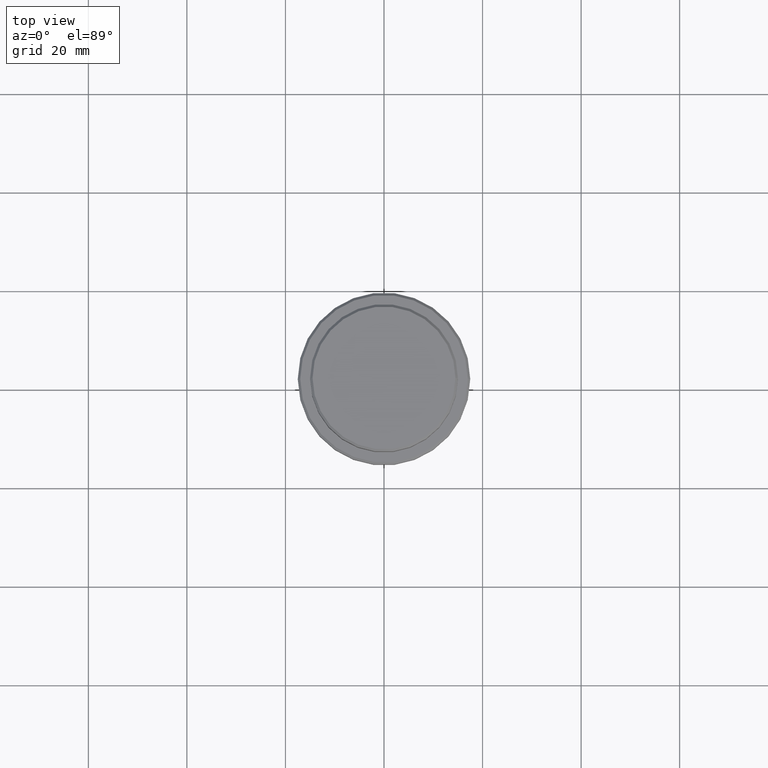
[diagram: clean part render]
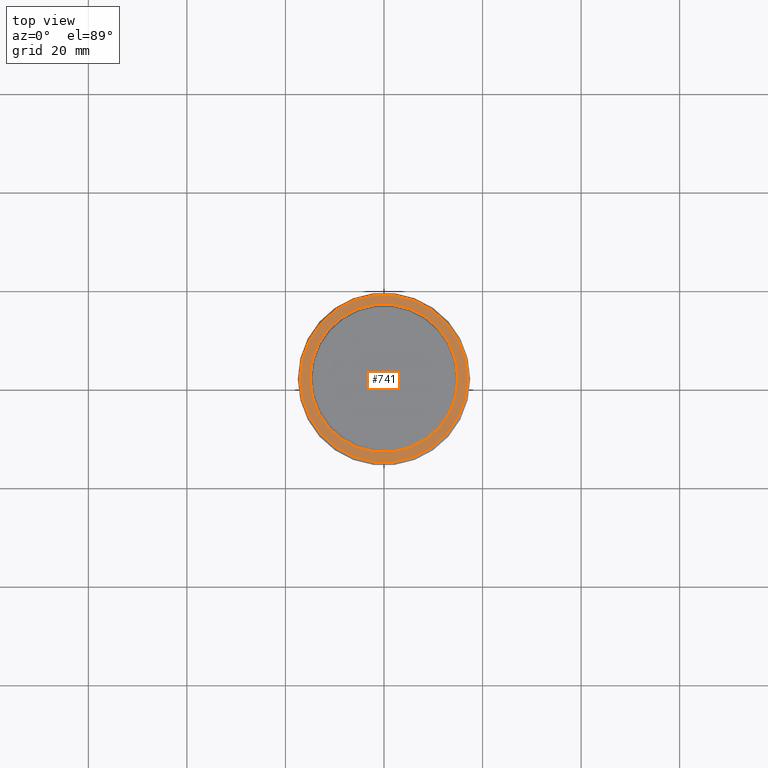
[diagram: same view with one face highlighted and labeled with its STEP entity id]
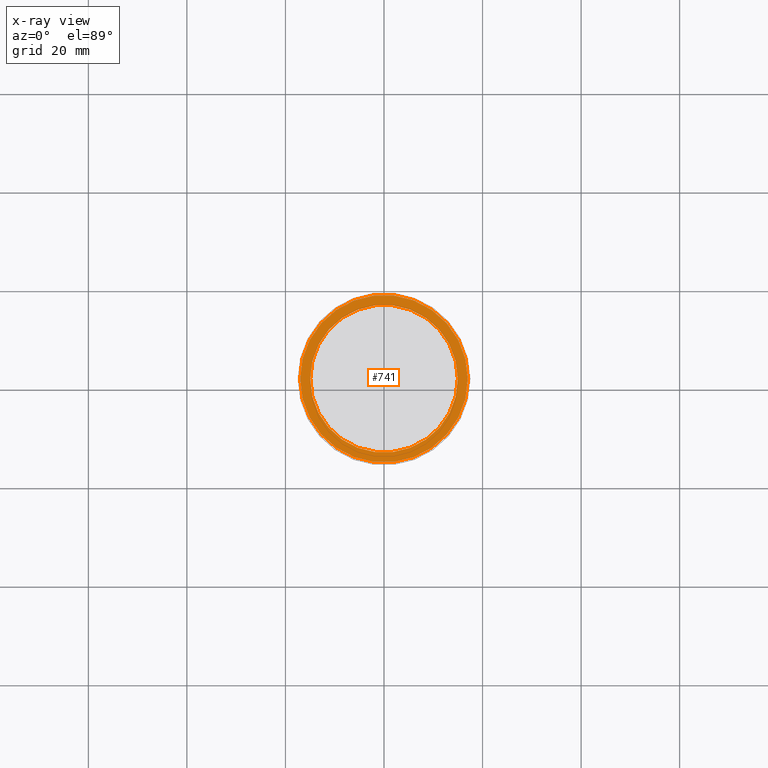
[diagram: x-ray of the same camera — body ghosted, the highlighted face saturated]
A machine part, top view. The second image highlights one B-rep face of the part: STEP entity #741.
The next image is the same camera in x-ray: the body ghosted, the highlighted face saturated — about 0% of this face is hidden behind the body in this view.
In plain terms, the highlighted planar face has unit normal (0, -0, 1).
Its self-contained STEP definition (entity closure, byte-faithful):
#6 = FACE_OUTER_BOUND ( 'NONE', #786, .T. ) ;
#82 = DIRECTION ( 'NONE',  ( 1.000000000000000000, 0.000000000000000000, 0.000000000000000000 ) ) ;
#117 = EDGE_CURVE ( 'NONE', #749, #872, #275, .T. ) ;
#160 = ORIENTED_EDGE ( 'NONE', *, *, #796, .T. ) ;
#205 = DIRECTION ( 'NONE',  ( -0.000000000000000000, -0.000000000000000000, 1.000000000000000000 ) ) ;
#275 = CIRCLE ( 'NONE', #832, 17.00000000000001421 ) ;
#292 = DIRECTION ( 'NONE',  ( 0.000000000000000000, 0.000000000000000000, -1.000000000000000000 ) ) ;
#345 = FACE_BOUND ( 'NONE', #1290, .T. ) ;
#386 = CIRCLE ( 'NONE', #1039, 14.99999999999999289 ) ;
#414 = DIRECTION ( 'NONE',  ( 1.000000000000000000, 0.000000000000000000, 0.000000000000000000 ) ) ;
#431 = CARTESIAN_POINT ( 'NONE',  ( -14.99999999999999289, 1.836970198721028800E-15, -9.000000000000000000 ) ) ;
#444 = DIRECTION ( 'NONE',  ( 1.000000000000000000, 0.000000000000000000, 0.000000000000000000 ) ) ;
#454 = PLANE ( 'NONE',  #1355 ) ;
#493 = CIRCLE ( 'NONE', #1305, 14.99999999999999289 ) ;
#520 = CARTESIAN_POINT ( 'NONE',  ( 0.000000000000000000, 0.000000000000000000, -9.000000000000000000 ) ) ;
#548 = CARTESIAN_POINT ( 'NONE',  ( 0.000000000000000000, 14.49999999999999467, -9.000000000000000000 ) ) ;
#549 = ORIENTED_EDGE ( 'NONE', *, *, #1388, .T. ) ;
#554 = VERTEX_POINT ( 'NONE', #975 ) ;
#560 = EDGE_CURVE ( 'NONE', #872, #749, #850, .T. ) ;
#615 = ORIENTED_EDGE ( 'NONE', *, *, #560, .T. ) ;
#683 = DIRECTION ( 'NONE',  ( 0.000000000000000000, 0.000000000000000000, -1.000000000000000000 ) ) ;
#741 = ADVANCED_FACE ( 'NONE', ( #6, #345 ), #454, .T. ) ;
#749 = VERTEX_POINT ( 'NONE', #1209 ) ;
#769 = VERTEX_POINT ( 'NONE', #431 ) ;
#786 = EDGE_LOOP ( 'NONE', ( #615, #1059 ) ) ;
#796 = EDGE_CURVE ( 'NONE', #554, #769, #493, .T. ) ;
#832 = AXIS2_PLACEMENT_3D ( 'NONE', #985, #1288, #82 ) ;
#850 = CIRCLE ( 'NONE', #1142, 17.00000000000001421 ) ;
#856 = CARTESIAN_POINT ( 'NONE',  ( 0.000000000000000000, 0.000000000000000000, -9.000000000000000000 ) ) ;
#872 = VERTEX_POINT ( 'NONE', #1038 ) ;
#964 = DIRECTION ( 'NONE',  ( 1.000000000000000000, 0.000000000000000000, 0.000000000000000000 ) ) ;
#975 = CARTESIAN_POINT ( 'NONE',  ( 14.99999999999999289, 0.000000000000000000, -9.000000000000000000 ) ) ;
#985 = CARTESIAN_POINT ( 'NONE',  ( 0.000000000000000000, 0.000000000000000000, -9.000000000000000000 ) ) ;
#1001 = CARTESIAN_POINT ( 'NONE',  ( 0.000000000000000000, 0.000000000000000000, -9.000000000000000000 ) ) ;
#1038 = CARTESIAN_POINT ( 'NONE',  ( -17.00000000000001421, 0.000000000000000000, -9.000000000000000000 ) ) ;
#1039 = AXIS2_PLACEMENT_3D ( 'NONE', #856, #292, #964 ) ;
#1059 = ORIENTED_EDGE ( 'NONE', *, *, #117, .T. ) ;
#1100 = DIRECTION ( 'NONE',  ( 0.000000000000000000, -0.000000000000000000, 1.000000000000000000 ) ) ;
#1123 = DIRECTION ( 'NONE',  ( 1.000000000000000000, 0.000000000000000000, 0.000000000000000000 ) ) ;
#1142 = AXIS2_PLACEMENT_3D ( 'NONE', #520, #205, #414 ) ;
#1209 = CARTESIAN_POINT ( 'NONE',  ( 17.00000000000001421, 2.112515728529185250E-15, -9.000000000000000000 ) ) ;
#1288 = DIRECTION ( 'NONE',  ( -0.000000000000000000, -0.000000000000000000, 1.000000000000000000 ) ) ;
#1290 = EDGE_LOOP ( 'NONE', ( #160, #549 ) ) ;
#1305 = AXIS2_PLACEMENT_3D ( 'NONE', #1001, #683, #1123 ) ;
#1355 = AXIS2_PLACEMENT_3D ( 'NONE', #548, #1100, #444 ) ;
#1388 = EDGE_CURVE ( 'NONE', #769, #554, #386, .T. ) ;